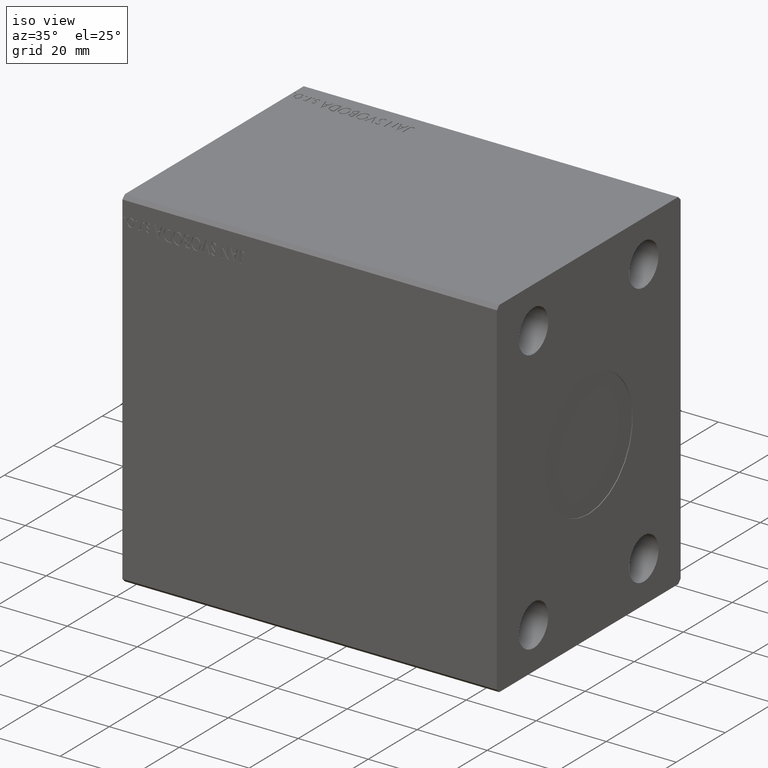
[diagram: clean part render]
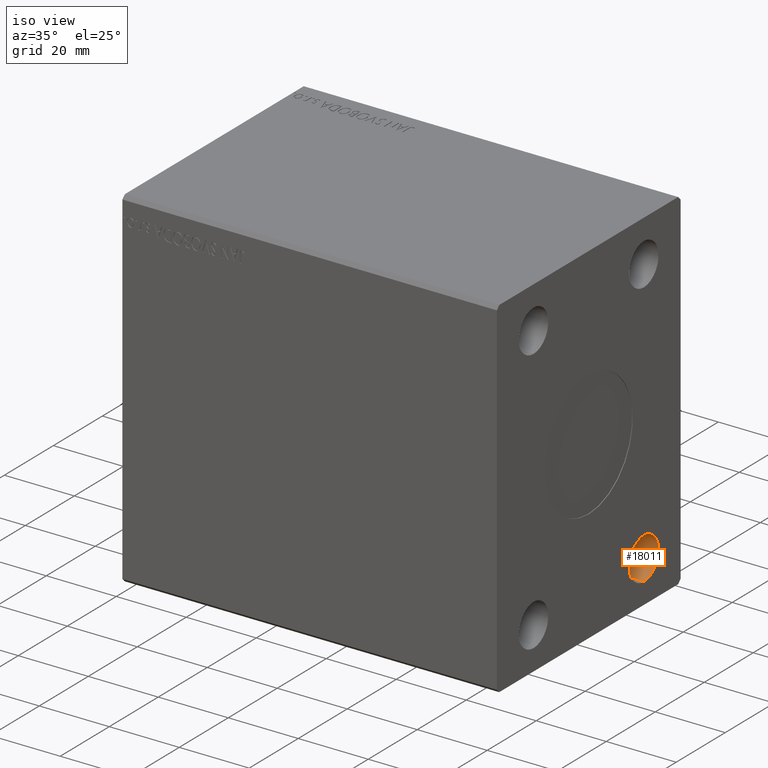
[diagram: same view with one face highlighted and labeled with its STEP entity id]
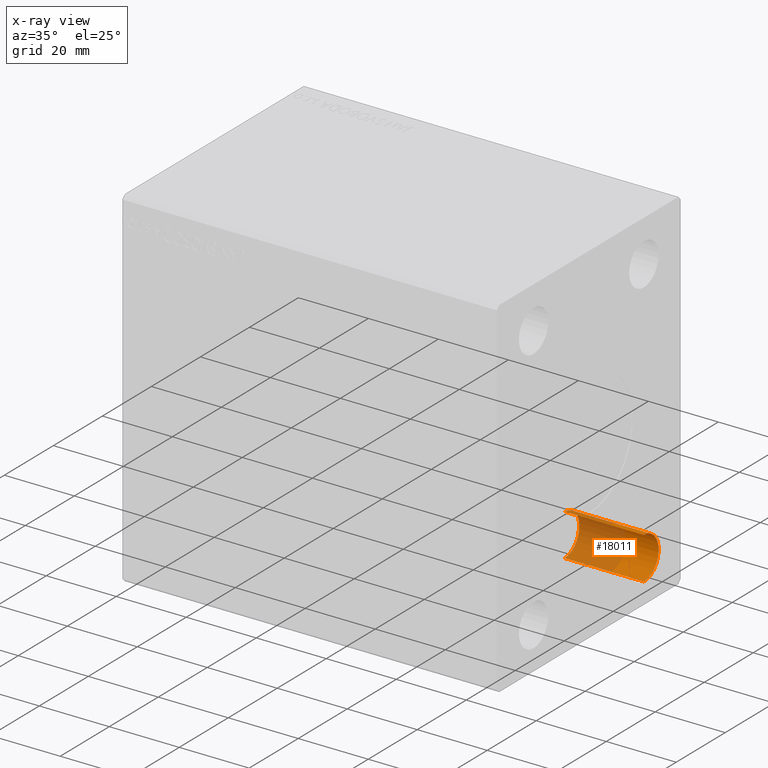
[diagram: x-ray of the same camera — body ghosted, the highlighted face saturated]
A machine part, iso view. The second image highlights one B-rep face of the part: STEP entity #18011.
The next image is the same camera in x-ray: the body ghosted, the highlighted face saturated — about 58% of this face is hidden behind the body in this view.
In plain terms, the highlighted cylindrical surface (edge-blend (fillet) strip) has radius 6 mm, axis along (1, 0, 0).
Its self-contained STEP definition (entity closure, byte-faithful):
#479 = AXIS2_PLACEMENT_3D ( 'NONE', #7081, #41546, #37995 ) ;
#3596 = ORIENTED_EDGE ( 'NONE', *, *, #34677, .T. ) ;
#7081 = CARTESIAN_POINT ( 'NONE',  ( 107.0000000000000000, 22.50000000000000000, -38.00000000000000000 ) ) ;
#8283 = CIRCLE ( 'NONE', #479, 5.999999999999998224 ) ;
#9595 = DIRECTION ( 'NONE',  ( 1.000000000000000000, -0.000000000000000000, -0.000000000000000000 ) ) ;
#11333 = EDGE_CURVE ( 'NONE', #12362, #17392, #20373, .T. ) ;
#11336 = AXIS2_PLACEMENT_3D ( 'NONE', #29922, #43270, #30360 ) ;
#11962 = EDGE_CURVE ( 'NONE', #26134, #43432, #8283, .T. ) ;
#12252 = LINE ( 'NONE', #23361, #15609 ) ;
#12362 = VERTEX_POINT ( 'NONE', #18348 ) ;
#12445 = CARTESIAN_POINT ( 'NONE',  ( 107.0000000000000000, 22.50000000000000000, -44.00000000000000000 ) ) ;
#15244 = ORIENTED_EDGE ( 'NONE', *, *, #11962, .T. ) ;
#15609 = VECTOR ( 'NONE', #16038, 1000.000000000000000 ) ;
#16010 = DIRECTION ( 'NONE',  ( 1.000000000000000000, -0.000000000000000000, -0.000000000000000000 ) ) ;
#16038 = DIRECTION ( 'NONE',  ( 1.000000000000000000, -0.000000000000000000, -0.000000000000000000 ) ) ;
#16565 = CARTESIAN_POINT ( 'NONE',  ( 107.0000000000000000, 22.50000000000000000, -32.00000000000000000 ) ) ;
#17392 = VERTEX_POINT ( 'NONE', #34282 ) ;
#18011 = ADVANCED_FACE ( 'NONE', ( #32818 ), #40594, .F. ) ;
#18348 = CARTESIAN_POINT ( 'NONE',  ( 84.32999999999998408, 22.50000000000000000, -44.00000000000000000 ) ) ;
#18634 = EDGE_CURVE ( 'NONE', #17392, #43432, #12252, .T. ) ;
#19845 = ORIENTED_EDGE ( 'NONE', *, *, #11333, .F. ) ;
#20373 = CIRCLE ( 'NONE', #26782, 5.999999999999998224 ) ;
#23361 = CARTESIAN_POINT ( 'NONE',  ( 107.0000000000000000, 22.50000000000000000, -32.00000000000000000 ) ) ;
#25572 = LINE ( 'NONE', #12445, #25647 ) ;
#25647 = VECTOR ( 'NONE', #16010, 1000.000000000000000 ) ;
#25846 = CARTESIAN_POINT ( 'NONE',  ( 84.32999999999998408, 22.50000000000000000, -38.00000000000000000 ) ) ;
#26134 = VERTEX_POINT ( 'NONE', #34910 ) ;
#26782 = AXIS2_PLACEMENT_3D ( 'NONE', #25846, #9595, #42517 ) ;
#29922 = CARTESIAN_POINT ( 'NONE',  ( 107.0000000000000000, 22.50000000000000000, -38.00000000000000000 ) ) ;
#30360 = DIRECTION ( 'NONE',  ( 0.000000000000000000, 0.000000000000000000, -1.000000000000000000 ) ) ;
#31704 = EDGE_LOOP ( 'NONE', ( #39272, #19845, #3596, #15244 ) ) ;
#32818 = FACE_OUTER_BOUND ( 'NONE', #31704, .T. ) ;
#34282 = CARTESIAN_POINT ( 'NONE',  ( 84.32999999999998408, 22.50000000000000000, -32.00000000000000000 ) ) ;
#34677 = EDGE_CURVE ( 'NONE', #12362, #26134, #25572, .T. ) ;
#34910 = CARTESIAN_POINT ( 'NONE',  ( 107.0000000000000000, 22.50000000000000000, -44.00000000000000000 ) ) ;
#37995 = DIRECTION ( 'NONE',  ( 0.000000000000000000, 0.000000000000000000, -1.000000000000000000 ) ) ;
#39272 = ORIENTED_EDGE ( 'NONE', *, *, #18634, .F. ) ;
#40594 = CYLINDRICAL_SURFACE ( 'NONE', #11336, 5.999999999999998224 ) ;
#41546 = DIRECTION ( 'NONE',  ( 1.000000000000000000, -0.000000000000000000, -0.000000000000000000 ) ) ;
#42517 = DIRECTION ( 'NONE',  ( 0.000000000000000000, 0.000000000000000000, -1.000000000000000000 ) ) ;
#43270 = DIRECTION ( 'NONE',  ( 1.000000000000000000, -0.000000000000000000, -0.000000000000000000 ) ) ;
#43432 = VERTEX_POINT ( 'NONE', #16565 ) ;